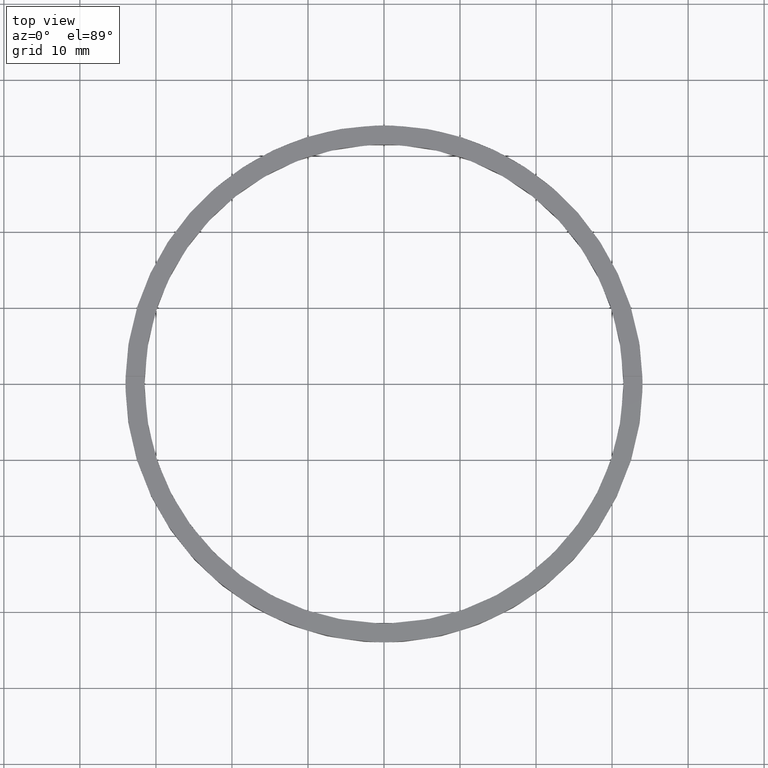
[diagram: clean part render]
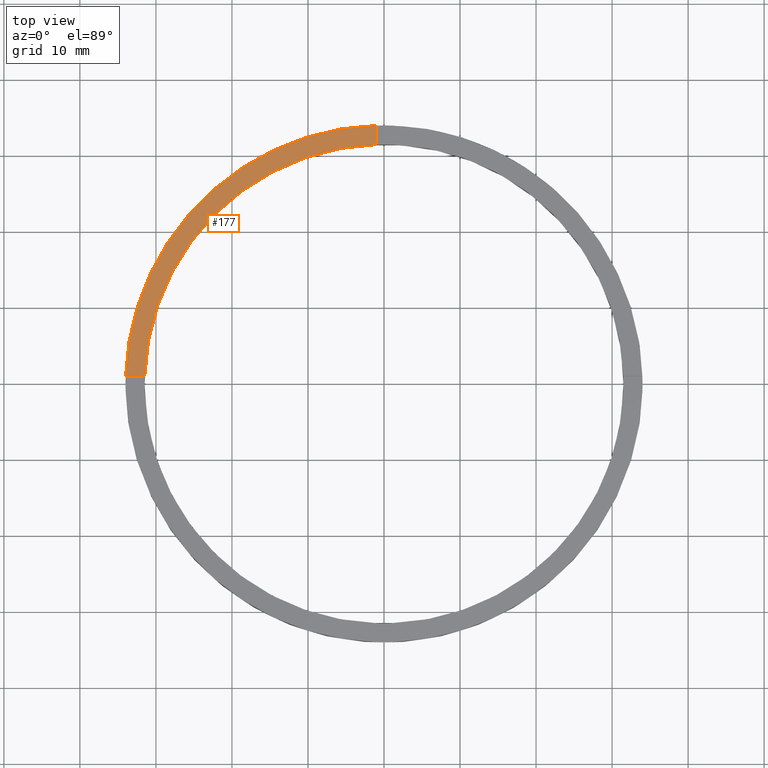
[diagram: same view with one face highlighted and labeled with its STEP entity id]
A machine part, top view. The second image highlights one B-rep face of the part: STEP entity #177.
In plain terms, the highlighted planar face has unit normal (0, 0, 1).
Its self-contained STEP definition (entity closure, byte-faithful):
#4 = EDGE_LOOP ( 'NONE', ( #408, #92, #340, #154 ) ) ;
#32 = DIRECTION ( 'NONE',  ( 1.000000000000000000, 0.000000000000000000, 0.000000000000000000 ) ) ;
#45 = VECTOR ( 'NONE', #730, 1000.000000000000000 ) ;
#92 = ORIENTED_EDGE ( 'NONE', *, *, #729, .T. ) ;
#101 = VERTEX_POINT ( 'NONE', #213 ) ;
#137 = AXIS2_PLACEMENT_3D ( 'NONE', #718, #436, #32 ) ;
#154 = ORIENTED_EDGE ( 'NONE', *, *, #668, .F. ) ;
#173 = PLANE ( 'NONE',  #185 ) ;
#177 = ADVANCED_FACE ( 'NONE', ( #479 ), #173, .T. ) ;
#185 = AXIS2_PLACEMENT_3D ( 'NONE', #773, #680, #357 ) ;
#213 = CARTESIAN_POINT ( 'NONE',  ( -1.000000000000024869, 33.98529093593285211, 3.000000000000000000 ) ) ;
#276 = VERTEX_POINT ( 'NONE', #706 ) ;
#289 = CARTESIAN_POINT ( 'NONE',  ( -1.000000000000024869, 31.48412298286233124, 3.000000000000000000 ) ) ;
#298 = CARTESIAN_POINT ( 'NONE',  ( -31.48412298286233124, 0.9999999999999742428, 3.000000000000000000 ) ) ;
#305 = DIRECTION ( 'NONE',  ( -0.000000000000000000, -1.000000000000000000, -0.000000000000000000 ) ) ;
#312 = LINE ( 'NONE', #437, #583 ) ;
#340 = ORIENTED_EDGE ( 'NONE', *, *, #598, .F. ) ;
#357 = DIRECTION ( 'NONE',  ( 1.000000000000000000, 0.000000000000000000, -0.000000000000000000 ) ) ;
#408 = ORIENTED_EDGE ( 'NONE', *, *, #470, .F. ) ;
#436 = DIRECTION ( 'NONE',  ( 0.000000000000000000, 0.000000000000000000, 1.000000000000000000 ) ) ;
#437 = CARTESIAN_POINT ( 'NONE',  ( -1.000000000000024869, 24.00000000000000000, 3.000000000000000000 ) ) ;
#470 = EDGE_CURVE ( 'NONE', #101, #644, #312, .T. ) ;
#479 = FACE_OUTER_BOUND ( 'NONE', #4, .T. ) ;
#566 = LINE ( 'NONE', #684, #45 ) ;
#579 = CIRCLE ( 'NONE', #612, 34.00000000000000000 ) ;
#583 = VECTOR ( 'NONE', #305, 1000.000000000000000 ) ;
#586 = CIRCLE ( 'NONE', #137, 31.50000000000000000 ) ;
#598 = EDGE_CURVE ( 'NONE', #772, #276, #566, .T. ) ;
#605 = CARTESIAN_POINT ( 'NONE',  ( 0.000000000000000000, 0.000000000000000000, 3.000000000000000000 ) ) ;
#612 = AXIS2_PLACEMENT_3D ( 'NONE', #605, #675, #722 ) ;
#644 = VERTEX_POINT ( 'NONE', #289 ) ;
#668 = EDGE_CURVE ( 'NONE', #644, #772, #586, .T. ) ;
#675 = DIRECTION ( 'NONE',  ( 0.000000000000000000, 0.000000000000000000, 1.000000000000000000 ) ) ;
#680 = DIRECTION ( 'NONE',  ( 0.000000000000000000, 0.000000000000000000, 1.000000000000000000 ) ) ;
#684 = CARTESIAN_POINT ( 'NONE',  ( -24.00000000000018829, 0.9999999999999754641, 3.000000000000000000 ) ) ;
#706 = CARTESIAN_POINT ( 'NONE',  ( -33.98529093593285921, 0.9999999999999735767, 3.000000000000000000 ) ) ;
#718 = CARTESIAN_POINT ( 'NONE',  ( 0.000000000000000000, 0.000000000000000000, 3.000000000000000000 ) ) ;
#722 = DIRECTION ( 'NONE',  ( 1.000000000000000000, 0.000000000000000000, 0.000000000000000000 ) ) ;
#729 = EDGE_CURVE ( 'NONE', #101, #276, #579, .T. ) ;
#730 = DIRECTION ( 'NONE',  ( -1.000000000000000000, -1.951563910473907735E-16, 0.000000000000000000 ) ) ;
#772 = VERTEX_POINT ( 'NONE', #298 ) ;
#773 = CARTESIAN_POINT ( 'NONE',  ( 0.000000000000000000, 0.000000000000000000, 3.000000000000000000 ) ) ;